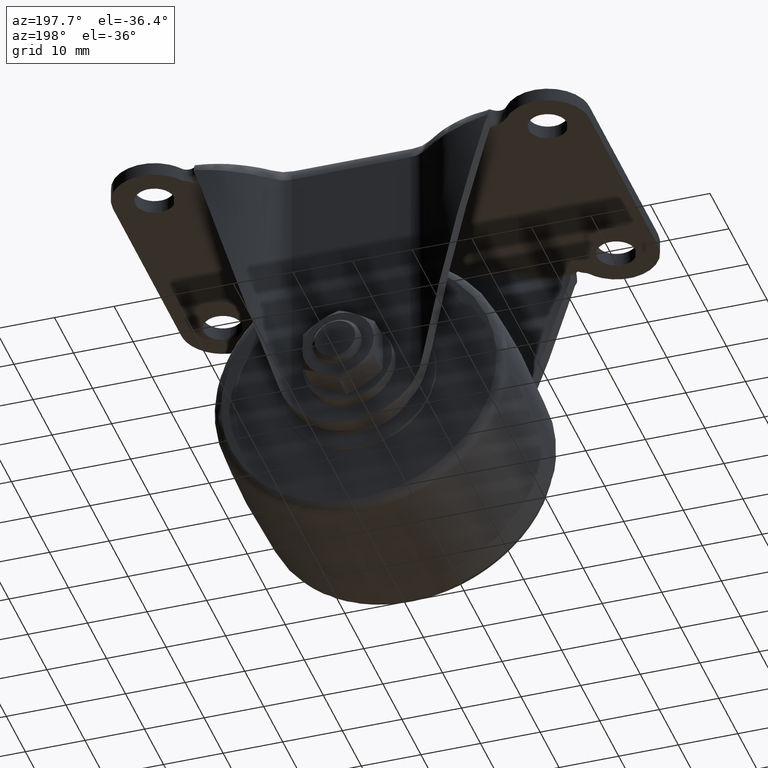
[diagram: clean part render]
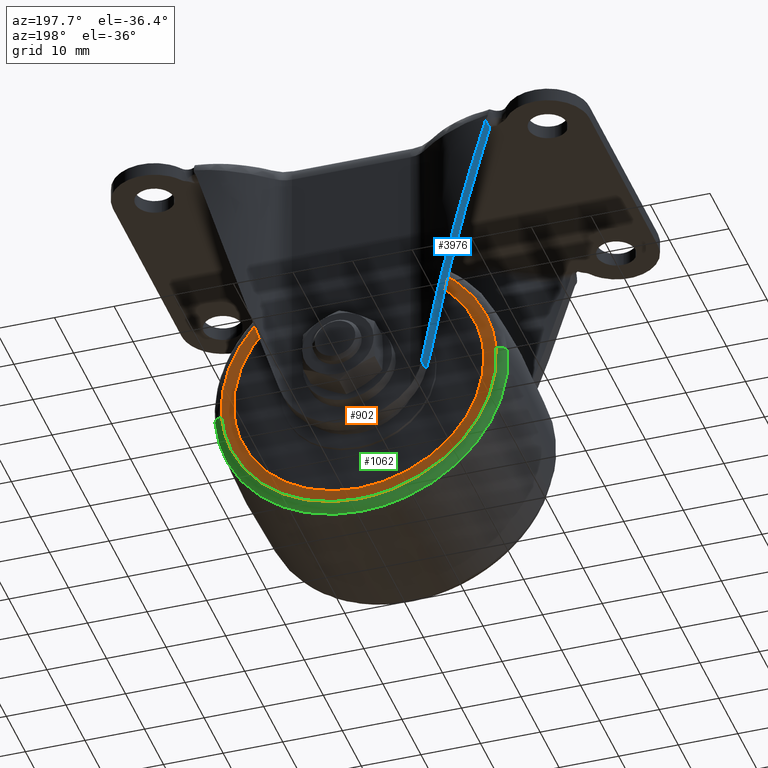
[diagram: same view with three faces highlighted in distinct colors, each labeled with its STEP entity id]
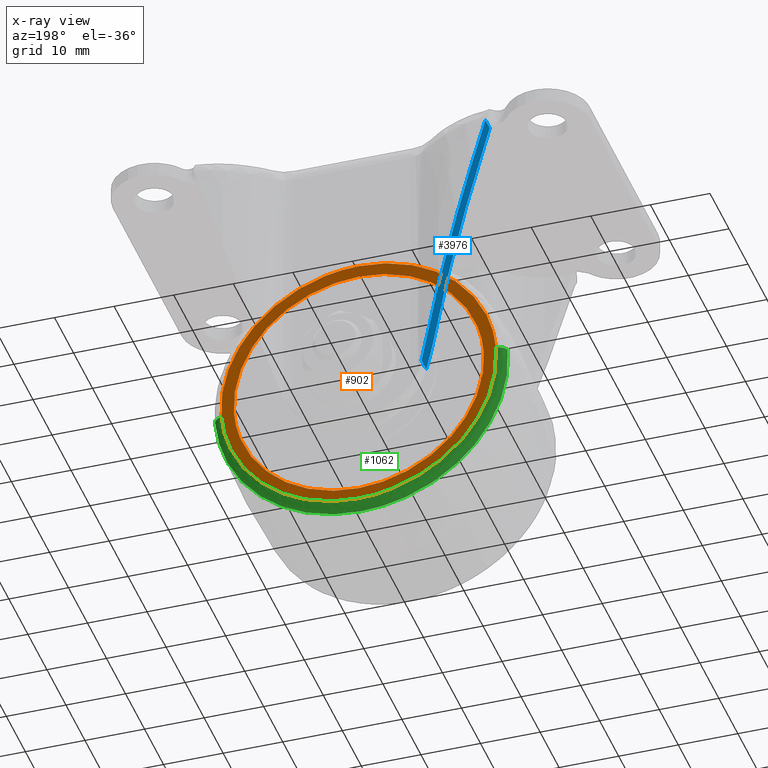
[diagram: x-ray of the same camera — body ghosted, the three highlighted faces saturated]
A machine part, auxiliary view with three faces highlighted in distinct colors.
The next image is the same camera in x-ray (body ghosted, the three faces saturated) — at least one of them is partly hidden behind the body in this view.
Their STEP definitions:

[orange] entity #902 — the highlighted face is a freeform B-spline surface patch.
#723=CARTESIAN_POINT('',(-20.960831436741959,14.000000000000121,-41.717991622348222));
#724=VERTEX_POINT('',#723);
#730=CARTESIAN_POINT('',(0.0,14.000000000000121,-22.0));
#731=VERTEX_POINT('',#730);
#732=CARTESIAN_POINT('',(0.0,14.000000000000121,-22.0));
#733=CARTESIAN_POINT('',(-19.754837746721773,14.000000000000126,-22.000000000000082));
#734=CARTESIAN_POINT('',(-20.960831436741959,14.000000000000117,-41.717991622348222));
#742=(BOUNDED_CURVE()B_SPLINE_CURVE(2,(#732,#733,#734),.UNSPECIFIED.,.F.,.U.)B_SPLINE_CURVE_WITH_KNOTS((3,3),(0.500000000000000,0.739333052402168),.UNSPECIFIED.)CURVE()GEOMETRIC_REPRESENTATION_ITEM()RATIONAL_B_SPLINE_CURVE((1.0,0.719603887653921,0.976072234903748))REPRESENTATION_ITEM(''));
#743=EDGE_CURVE('',#731,#724,#742,.T.);
#745=CARTESIAN_POINT('',(20.960831436741959,14.000000000000121,-44.282008377651792));
#746=VERTEX_POINT('',#745);
#747=CARTESIAN_POINT('',(20.960831436741962,14.000000000000119,-44.282008377651785));
#748=CARTESIAN_POINT('',(20.999999999997179,14.000000000000128,-43.641602537625332));
#749=CARTESIAN_POINT('',(20.999999999997218,14.000000000000121,-42.999999999999837));
#750=CARTESIAN_POINT('',(20.999999999998646,14.000000000000123,-21.999999999999922));
#751=CARTESIAN_POINT('',(0.0,14.000000000000121,-22.0));
#759=(BOUNDED_CURVE()B_SPLINE_CURVE(2,(#747,#748,#749,#750,#751),.UNSPECIFIED.,.F.,.U.)B_SPLINE_CURVE_WITH_KNOTS((3,2,3),(0.239333052402168,0.250000000000000,0.500000000000000),.UNSPECIFIED.)CURVE()GEOMETRIC_REPRESENTATION_ITEM()RATIONAL_B_SPLINE_CURVE((0.976072234903748,0.987502893532626,1.0,0.707106781186547,1.0))REPRESENTATION_ITEM(''));
#760=EDGE_CURVE('',#746,#731,#759,.T.);
#790=CARTESIAN_POINT('',(0.0,14.000000000000121,-64.0));
#791=VERTEX_POINT('',#790);
#792=CARTESIAN_POINT('',(0.0,14.000000000000121,-64.0));
#793=CARTESIAN_POINT('',(19.754837746721755,14.000000000000124,-63.999999999999908));
#794=CARTESIAN_POINT('',(20.960831436741962,14.000000000000119,-44.282008377651785));
#802=(BOUNDED_CURVE()B_SPLINE_CURVE(2,(#792,#793,#794),.UNSPECIFIED.,.F.,.U.)B_SPLINE_CURVE_WITH_KNOTS((3,3),(0.0,0.239333052402168),.UNSPECIFIED.)CURVE()GEOMETRIC_REPRESENTATION_ITEM()RATIONAL_B_SPLINE_CURVE((1.0,0.719603887653921,0.976072234903748))REPRESENTATION_ITEM(''));
#803=EDGE_CURVE('',#791,#746,#802,.T.);
#805=CARTESIAN_POINT('',(-20.960831436741959,14.000000000000117,-41.717991622348222));
#806=CARTESIAN_POINT('',(-20.999999999997176,14.000000000000126,-42.358397462374690));
#807=CARTESIAN_POINT('',(-20.999999999997229,14.000000000000121,-43.000000000000171));
#808=CARTESIAN_POINT('',(-20.999999999998661,14.000000000000123,-64.000000000000071));
#809=CARTESIAN_POINT('',(0.0,14.000000000000121,-64.0));
#817=(BOUNDED_CURVE()B_SPLINE_CURVE(2,(#805,#806,#807,#808,#809),.UNSPECIFIED.,.F.,.U.)B_SPLINE_CURVE_WITH_KNOTS((3,2,3),(0.739333052402168,0.750000000000000,1.0),.UNSPECIFIED.)CURVE()GEOMETRIC_REPRESENTATION_ITEM()RATIONAL_B_SPLINE_CURVE((0.976072234903748,0.987502893532626,1.0,0.707106781186547,1.0))REPRESENTATION_ITEM(''));
#818=EDGE_CURVE('',#724,#791,#817,.T.);
#825=CARTESIAN_POINT('',(-25.408972607249229,14.000000000000121,-68.414324743792108));
#826=CARTESIAN_POINT('',(-25.408972607249229,14.000000000000121,-17.585674016703731));
#827=CARTESIAN_POINT('',(25.408971367774679,14.000000000000121,-68.414324743792108));
#828=CARTESIAN_POINT('',(25.408971367774679,14.000000000000121,-17.585674016703731));
#829=B_SPLINE_SURFACE_WITH_KNOTS('',1,1,((#825,#827),(#826,#828)),.UNSPECIFIED.,.F.,.F.,.U.,(2,2),(2,2),(0.0,50.828650727088380),(0.0,50.817943975023908),.UNSPECIFIED.);
#830=CARTESIAN_POINT('',(-23.040385673882572,14.000000000000121,-41.259496404739181));
#831=VERTEX_POINT('',#830);
#832=CARTESIAN_POINT('',(0.0,14.000000000000121,-66.106032215074151));
#833=VERTEX_POINT('',#832);
#834=CARTESIAN_POINT('',(-23.040385673882568,14.000000000000117,-41.259496404739181));
#835=CARTESIAN_POINT('',(-23.106032215971453,14.000000000000119,-42.128510207625382));
#836=CARTESIAN_POINT('',(-23.106032215954230,14.000000000000121,-42.999999999933507));
#837=CARTESIAN_POINT('',(-23.106032215497599,14.000000000000123,-66.106032215042163));
#838=CARTESIAN_POINT('',(0.0,14.000000000000121,-66.106032215074151));
#846=(BOUNDED_CURVE()B_SPLINE_CURVE(2,(#834,#835,#836,#837,#838),.UNSPECIFIED.,.F.,.U.)B_SPLINE_CURVE_WITH_KNOTS((3,2,3),(0.736870159262311,0.750000000000000,1.0),.UNSPECIFIED.)CURVE()GEOMETRIC_REPRESENTATION_ITEM()RATIONAL_B_SPLINE_CURVE((0.970850634527142,0.984617434735322,1.0,0.707106781186548,1.0))REPRESENTATION_ITEM(''));
#847=EDGE_CURVE('',#831,#833,#846,.T.);
#848=ORIENTED_EDGE('',*,*,#847,.F.);
#849=CARTESIAN_POINT('',(0.0,14.000000000000121,-19.893967784925849));
#850=VERTEX_POINT('',#849);
#851=CARTESIAN_POINT('',(0.0,14.000000000000121,-19.893967784925849));
#852=CARTESIAN_POINT('',(-21.426403168796849,14.000000000000123,-19.893967784891345));
#853=CARTESIAN_POINT('',(-23.040385673882568,14.000000000000117,-41.259496404739181));
#861=(BOUNDED_CURVE()B_SPLINE_CURVE(2,(#851,#852,#853),.UNSPECIFIED.,.F.,.U.)B_SPLINE_CURVE_WITH_KNOTS((3,3),(0.500000000000000,0.736870159262311),.UNSPECIFIED.)CURVE()GEOMETRIC_REPRESENTATION_ITEM()RATIONAL_B_SPLINE_CURVE((1.0,0.722489346451226,0.970850634527142))REPRESENTATION_ITEM(''));
#862=EDGE_CURVE('',#850,#831,#861,.T.);
#863=ORIENTED_EDGE('',*,*,#862,.F.);
#864=CARTESIAN_POINT('',(23.040385673882579,14.000000000000121,-44.740503595260833));
#865=VERTEX_POINT('',#864);
#866=CARTESIAN_POINT('',(23.040385673882572,14.000000000000119,-44.740503595260833));
#867=CARTESIAN_POINT('',(23.106032215971457,14.000000000000121,-43.871489792374618));
#868=CARTESIAN_POINT('',(23.106032215954240,14.000000000000121,-43.000000000066493));
#869=CARTESIAN_POINT('',(23.106032215497599,14.000000000000123,-19.893967784957841));
#870=CARTESIAN_POINT('',(0.0,14.000000000000121,-19.893967784925849));
#878=(BOUNDED_CURVE()B_SPLINE_CURVE(2,(#866,#867,#868,#869,#870),.UNSPECIFIED.,.F.,.U.)B_SPLINE_CURVE_WITH_KNOTS((3,2,3),(0.236870159262311,0.250000000000000,0.500000000000000),.UNSPECIFIED.)CURVE()GEOMETRIC_REPRESENTATION_ITEM()RATIONAL_B_SPLINE_CURVE((0.970850634527142,0.984617434735321,1.0,0.707106781186548,1.0))REPRESENTATION_ITEM(''));
#879=EDGE_CURVE('',#865,#850,#878,.T.);
#880=ORIENTED_EDGE('',*,*,#879,.F.);
#881=CARTESIAN_POINT('',(0.0,14.000000000000121,-66.106032215074151));
#882=CARTESIAN_POINT('',(21.426403168796828,14.000000000000117,-66.106032215108655));
#883=CARTESIAN_POINT('',(23.040385673882575,14.000000000000121,-44.740503595260833));
#891=(BOUNDED_CURVE()B_SPLINE_CURVE(2,(#881,#882,#883),.UNSPECIFIED.,.F.,.U.)B_SPLINE_CURVE_WITH_KNOTS((3,3),(0.0,0.236870159262311),.UNSPECIFIED.)CURVE()GEOMETRIC_REPRESENTATION_ITEM()RATIONAL_B_SPLINE_CURVE((1.0,0.722489346451226,0.970850634527142))REPRESENTATION_ITEM(''));
#892=EDGE_CURVE('',#833,#865,#891,.T.);
#893=ORIENTED_EDGE('',*,*,#892,.F.);
#894=EDGE_LOOP('',(#848,#863,#880,#893));
#895=FACE_OUTER_BOUND('',#894,.T.);
#896=ORIENTED_EDGE('',*,*,#743,.T.);
#897=ORIENTED_EDGE('',*,*,#818,.T.);
#898=ORIENTED_EDGE('',*,*,#803,.T.);
#899=ORIENTED_EDGE('',*,*,#760,.T.);
#900=EDGE_LOOP('',(#896,#897,#898,#899));
#901=FACE_BOUND('',#900,.T.);
#902=ADVANCED_FACE('',(#895,#901),#829,.T.);

[blue] entity #3976 — the highlighted face is a freeform B-spline surface patch.
#3873=CARTESIAN_POINT('',(-24.902436185338189,15.673118453543459,-0.941362386125301));
#3874=CARTESIAN_POINT('',(-11.370753602469090,15.673118453543459,-46.624737570785783));
#3875=CARTESIAN_POINT('',(-24.902436185338189,23.868271055112100,-0.941362386125301));
#3876=CARTESIAN_POINT('',(-11.370753602469090,23.868271055112100,-46.624737570785783));
#3877=B_SPLINE_SURFACE_WITH_KNOTS('',1,1,((#3873,#3875),(#3874,#3876)),.UNSPECIFIED.,.F.,.F.,.U.,(2,2),(2,2),(0.0,47.645327176817418),(0.0,8.195152601568644),.UNSPECIFIED.);
#3878=CARTESIAN_POINT('',(-24.203793946450350,21.209448129626448,-3.300000000000000));
#3879=VERTEX_POINT('',#3878);
#3880=CARTESIAN_POINT('',(-23.483671002061151,21.156677177313401,-5.731157134092110));
#3881=VERTEX_POINT('',#3880);
#3882=CARTESIAN_POINT('',(-24.203793946450350,21.209448129626448,-3.300000000000000));
#3883=CARTESIAN_POINT('',(-23.483671002061151,21.156677177313401,-5.731157134092110));
#3884=QUASI_UNIFORM_CURVE('',1,(#3882,#3883),.UNSPECIFIED.,.F.,.U.);
#3885=EDGE_CURVE('',#3879,#3881,#3884,.T.);
#3886=ORIENTED_EDGE('',*,*,#3885,.F.);
#3887=CARTESIAN_POINT('',(-24.287918952238151,21.174324167167299,-3.015991401787390));
#3888=VERTEX_POINT('',#3887);
#3889=CARTESIAN_POINT('',(-24.203793946450279,21.209448129626431,-3.300000000000052));
#3890=CARTESIAN_POINT('',(-24.246740685482290,21.212595287115466,-3.155010492587220));
#3891=CARTESIAN_POINT('',(-24.287918952238151,21.174324167167288,-3.015991401787432));
#3899=(BOUNDED_CURVE()B_SPLINE_CURVE(2,(#3889,#3890,#3891),.UNSPECIFIED.,.F.,.U.)CURVE()GEOMETRIC_REPRESENTATION_ITEM()QUASI_UNIFORM_CURVE()RATIONAL_B_SPLINE_CURVE((1.0,0.989651891637690,1.0))REPRESENTATION_ITEM(''));
#3900=EDGE_CURVE('',#3879,#3888,#3899,.T.);
#3901=ORIENTED_EDGE('',*,*,#3900,.T.);
#3902=CARTESIAN_POINT('',(-24.287918952238151,23.496102614493850,-3.015991401787430));
#3903=VERTEX_POINT('',#3902);
#3904=CARTESIAN_POINT('',(-24.287918952238151,21.174324167167299,-3.015991401787390));
#3905=CARTESIAN_POINT('',(-24.287918952238151,23.496102614493850,-3.015991401787430));
#3906=QUASI_UNIFORM_CURVE('',1,(#3904,#3905),.UNSPECIFIED.,.F.,.U.);
#3907=EDGE_CURVE('',#3888,#3903,#3906,.T.);
#3908=ORIENTED_EDGE('',*,*,#3907,.T.);
#3909=CARTESIAN_POINT('',(-12.548575408855120,18.977777843264601,-42.648375048809051));
#3910=VERTEX_POINT('',#3909);
#3911=CARTESIAN_POINT('',(-12.548575408855120,18.977777843264590,-42.648375048809072));
#3912=CARTESIAN_POINT('',(-17.601557490519454,23.358833037606228,-25.589352652712140));
#3913=CARTESIAN_POINT('',(-24.287918952237622,23.496102614493850,-3.015991401789258));
#3921=(BOUNDED_CURVE()B_SPLINE_CURVE(2,(#3911,#3912,#3913),.UNSPECIFIED.,.F.,.U.)CURVE()GEOMETRIC_REPRESENTATION_ITEM()QUASI_UNIFORM_CURVE()RATIONAL_B_SPLINE_CURVE((1.0,0.940436680516027,1.0))REPRESENTATION_ITEM(''));
#3922=EDGE_CURVE('',#3910,#3903,#3921,.T.);
#3923=ORIENTED_EDGE('',*,*,#3922,.F.);
#3924=CARTESIAN_POINT('',(-11.985271165551881,18.569459145717850,-44.550107441091903));
#3925=VERTEX_POINT('',#3924);
#3926=CARTESIAN_POINT('',(-12.548575408855120,18.977777843264601,-42.648375048809051));
#3927=CARTESIAN_POINT('',(-12.284745703318624,18.749031223117584,-43.539072221837550));
#3928=CARTESIAN_POINT('',(-11.985271165552010,18.569459145717850,-44.550107441091427));
#3936=(BOUNDED_CURVE()B_SPLINE_CURVE(2,(#3926,#3927,#3928),.UNSPECIFIED.,.F.,.U.)CURVE()GEOMETRIC_REPRESENTATION_ITEM()QUASI_UNIFORM_CURVE()RATIONAL_B_SPLINE_CURVE((1.0,0.996211292933049,1.0))REPRESENTATION_ITEM(''));
#3937=EDGE_CURVE('',#3910,#3925,#3936,.T.);
#3938=ORIENTED_EDGE('',*,*,#3937,.T.);
#3939=CARTESIAN_POINT('',(-11.985271165551881,16.045286694315251,-44.550107441091903));
#3940=VERTEX_POINT('',#3939);
#3941=CARTESIAN_POINT('',(-11.985271165551881,18.569459145717850,-44.550107441091903));
#3942=CARTESIAN_POINT('',(-11.985271165551881,16.045286694315251,-44.550107441091903));
#3943=QUASI_UNIFORM_CURVE('',1,(#3941,#3942),.UNSPECIFIED.,.F.,.U.);
#3944=EDGE_CURVE('',#3925,#3940,#3943,.T.);
#3945=ORIENTED_EDGE('',*,*,#3944,.T.);
#3946=CARTESIAN_POINT('',(-14.055269859451760,17.239999999999998,-37.561728399087002));
#3947=VERTEX_POINT('',#3946);
#3948=CARTESIAN_POINT('',(-14.055269859451821,17.240000000000041,-37.561728399087023));
#3949=CARTESIAN_POINT('',(-13.135675139382593,16.442689579357168,-40.666308362257276));
#3950=CARTESIAN_POINT('',(-11.985271165551980,16.045286694315251,-44.550107441091818));
#3958=(BOUNDED_CURVE()B_SPLINE_CURVE(2,(#3948,#3949,#3950),.UNSPECIFIED.,.F.,.U.)CURVE()GEOMETRIC_REPRESENTATION_ITEM()QUASI_UNIFORM_CURVE()RATIONAL_B_SPLINE_CURVE((1.0,0.981845042307097,1.0))REPRESENTATION_ITEM(''));
#3959=EDGE_CURVE('',#3947,#3940,#3958,.T.);
#3960=ORIENTED_EDGE('',*,*,#3959,.F.);
#3961=CARTESIAN_POINT('',(-14.055269859451750,17.239999999999998,-37.561728399087137));
#3962=CARTESIAN_POINT('',(-18.119253446860235,20.763570104141500,-23.841595235239311));
#3963=CARTESIAN_POINT('',(-23.483671002061129,21.156677177313401,-5.731157134092179));
#3971=(BOUNDED_CURVE()B_SPLINE_CURVE(2,(#3961,#3962,#3963),.UNSPECIFIED.,.F.,.U.)CURVE()GEOMETRIC_REPRESENTATION_ITEM()QUASI_UNIFORM_CURVE()RATIONAL_B_SPLINE_CURVE((1.0,0.949055199944192,1.0))REPRESENTATION_ITEM(''));
#3972=EDGE_CURVE('',#3947,#3881,#3971,.T.);
#3973=ORIENTED_EDGE('',*,*,#3972,.T.);
#3974=EDGE_LOOP('',(#3886,#3901,#3908,#3923,#3938,#3945,#3960,#3973));
#3975=FACE_OUTER_BOUND('',#3974,.T.);
#3976=ADVANCED_FACE('',(#3975),#3877,.F.);

[green] entity #1062 — the highlighted face is a freeform B-spline surface patch.
#830=CARTESIAN_POINT('',(-23.040385673882572,14.000000000000121,-41.259496404739181));
#831=VERTEX_POINT('',#830);
#832=CARTESIAN_POINT('',(0.0,14.000000000000121,-66.106032215074151));
#833=VERTEX_POINT('',#832);
#834=CARTESIAN_POINT('',(-23.040385673882568,14.000000000000117,-41.259496404739181));
#835=CARTESIAN_POINT('',(-23.106032215971453,14.000000000000119,-42.128510207625382));
#836=CARTESIAN_POINT('',(-23.106032215954230,14.000000000000121,-42.999999999933507));
#837=CARTESIAN_POINT('',(-23.106032215497599,14.000000000000123,-66.106032215042163));
#838=CARTESIAN_POINT('',(0.0,14.000000000000121,-66.106032215074151));
#846=(BOUNDED_CURVE()B_SPLINE_CURVE(2,(#834,#835,#836,#837,#838),.UNSPECIFIED.,.F.,.U.)B_SPLINE_CURVE_WITH_KNOTS((3,2,3),(0.736870159262311,0.750000000000000,1.0),.UNSPECIFIED.)CURVE()GEOMETRIC_REPRESENTATION_ITEM()RATIONAL_B_SPLINE_CURVE((0.970850634527142,0.984617434735322,1.0,0.707106781186548,1.0))REPRESENTATION_ITEM(''));
#847=EDGE_CURVE('',#831,#833,#846,.T.);
#864=CARTESIAN_POINT('',(23.040385673882579,14.000000000000121,-44.740503595260833));
#865=VERTEX_POINT('',#864);
#881=CARTESIAN_POINT('',(0.0,14.000000000000121,-66.106032215074151));
#882=CARTESIAN_POINT('',(21.426403168796828,14.000000000000117,-66.106032215108655));
#883=CARTESIAN_POINT('',(23.040385673882575,14.000000000000121,-44.740503595260833));
#891=(BOUNDED_CURVE()B_SPLINE_CURVE(2,(#881,#882,#883),.UNSPECIFIED.,.F.,.U.)B_SPLINE_CURVE_WITH_KNOTS((3,3),(0.0,0.236870159262311),.UNSPECIFIED.)CURVE()GEOMETRIC_REPRESENTATION_ITEM()RATIONAL_B_SPLINE_CURVE((1.0,0.722489346451226,0.970850634527142))REPRESENTATION_ITEM(''));
#892=EDGE_CURVE('',#833,#865,#891,.T.);
#934=CARTESIAN_POINT('',(-24.533155318123370,12.594462457292559,-41.146730456724711));
#935=VERTEX_POINT('',#934);
#936=CARTESIAN_POINT('',(-23.040385673882575,14.000000000000124,-41.259496404739181));
#937=CARTESIAN_POINT('',(-24.444717490237451,14.000000004685978,-41.153411176387699));
#938=CARTESIAN_POINT('',(-24.533155318123374,12.594462457292559,-41.146730456724711));
#946=(BOUNDED_CURVE()B_SPLINE_CURVE(2,(#936,#937,#938),.UNSPECIFIED.,.F.,.U.)B_SPLINE_CURVE_WITH_KNOTS((3,3),(-1.726123028022198,-0.274072998962666),.UNSPECIFIED.)CURVE()GEOMETRIC_REPRESENTATION_ITEM()RATIONAL_B_SPLINE_CURVE((0.891658472872323,0.650023674207352,0.891593240206242))REPRESENTATION_ITEM(''));
#947=EDGE_CURVE('',#831,#935,#946,.T.);
#964=CARTESIAN_POINT('',(24.533155318122990,12.594462457298430,-44.853269543275253));
#965=VERTEX_POINT('',#964);
#981=CARTESIAN_POINT('',(23.040385673882575,14.000000000000121,-44.740503595260833));
#982=CARTESIAN_POINT('',(24.444717490231909,14.000000004685972,-44.846588823611889));
#983=CARTESIAN_POINT('',(24.533155318122983,12.594462457298430,-44.853269543275239));
#991=(BOUNDED_CURVE()B_SPLINE_CURVE(2,(#981,#982,#983),.UNSPECIFIED.,.F.,.U.)B_SPLINE_CURVE_WITH_KNOTS((3,3),(-1.726123028022197,-0.274072998966824),.UNSPECIFIED.)CURVE()GEOMETRIC_REPRESENTATION_ITEM()RATIONAL_B_SPLINE_CURVE((0.891658472872322,0.650023674208044,0.891593240204858))REPRESENTATION_ITEM(''));
#992=EDGE_CURVE('',#865,#965,#991,.T.);
#997=CARTESIAN_POINT('',(-22.891146273865537,13.996590359407373,-40.625794324418429));
#998=CARTESIAN_POINT('',(-22.915228174147376,13.996590359407381,-40.944584973151429));
#999=CARTESIAN_POINT('',(-24.672481724786827,13.996590359407378,-64.206702698094759));
#1000=CARTESIAN_POINT('',(-1.732889513346031,13.996590359407380,-65.939592211440797));
#1001=CARTESIAN_POINT('',(21.206702698094766,13.996590359407378,-67.672481724786820));
#1002=CARTESIAN_POINT('',(22.963956248733187,13.996590359407376,-44.410363999856962));
#1003=CARTESIAN_POINT('',(22.988038149014038,13.996590359407374,-44.091573351137086));
#1004=CARTESIAN_POINT('',(-24.491391661456184,14.105209262846904,-40.459821347963427));
#1005=CARTESIAN_POINT('',(-24.517157048855257,14.105209262846902,-40.800897611367638));
#1006=CARTESIAN_POINT('',(-26.397254464786332,14.105209262846902,-65.689194128302276));
#1007=CARTESIAN_POINT('',(-1.854030168242030,14.105209262846902,-67.543224296544324));
#1008=CARTESIAN_POINT('',(22.689194128302280,14.105209262846902,-69.397254464786329));
#1009=CARTESIAN_POINT('',(24.569291544232271,14.105209262846900,-44.508957947866101));
#1010=CARTESIAN_POINT('',(24.595056931630268,14.105209262846902,-44.167881684475944));
#1011=CARTESIAN_POINT('',(-24.484291759336912,12.493359990194845,-40.460557729956065));
#1012=CARTESIAN_POINT('',(-24.510049677510413,12.493359990194842,-40.801535117472845));
#1013=CARTESIAN_POINT('',(-26.389602064893818,12.493359990194845,-65.682616672039146));
#1014=CARTESIAN_POINT('',(-1.853492696427334,12.493359990194847,-67.536109368466484));
#1015=CARTESIAN_POINT('',(22.682616672039146,12.493359990194845,-69.389602064893822));
#1016=CARTESIAN_POINT('',(24.562169059421461,12.493359990194849,-44.508520510341917));
#1017=CARTESIAN_POINT('',(24.587926977593916,12.493359990194849,-44.167543122839206));
#1025=(BOUNDED_SURFACE()B_SPLINE_SURFACE(2,2,((#997,#1004,#1011),(#998,#1005,#1012),(#999,#1006,#1013),(#1000,#1007,#1014),(#1001,#1008,#1015),(#1002,#1009,#1016),(#1003,#1010,#1017)),.UNSPECIFIED.,.F.,.F.,.U.)B_SPLINE_SURFACE_WITH_KNOTS((3,1,2,1,3),(3,3),(0.0,0.815371693798149,41.583956382285251,82.352541070772361,83.167912764536283),(0.0,2.613077074966226),.UNSPECIFIED.)GEOMETRIC_REPRESENTATION_ITEM()RATIONAL_B_SPLINE_SURFACE(((0.927746727696777,0.632000637097562,0.927674155065772),(0.922375046351798,0.628341334476533,0.922302893918500),(0.648419297767204,0.441716900810418,0.648368575416989),(0.917003365006818,0.624682031855504,0.916931632771228),(0.648419297767204,0.441716900810418,0.648368575416989),(0.922375046351572,0.628341334476379,0.922302893918275),(0.927746727696326,0.632000637097255,0.927674155065321)))REPRESENTATION_ITEM('')SURFACE());
#1026=ORIENTED_EDGE('',*,*,#892,.T.);
#1027=ORIENTED_EDGE('',*,*,#992,.T.);
#1028=CARTESIAN_POINT('',(0.0,12.594462468056269,-67.603054874269191));
#1029=VERTEX_POINT('',#1028);
#1030=CARTESIAN_POINT('',(0.0,12.594462468056269,-67.603054874269191));
#1031=CARTESIAN_POINT('',(22.814604126275555,12.594462462695356,-67.603054867647984));
#1032=CARTESIAN_POINT('',(24.533155318122986,12.594462457298427,-44.853269543275246));
#1040=(BOUNDED_CURVE()B_SPLINE_CURVE(2,(#1030,#1031,#1032),.UNSPECIFIED.,.F.,.U.)B_SPLINE_CURVE_WITH_KNOTS((3,3),(0.0,0.236870159076173),.UNSPECIFIED.)CURVE()GEOMETRIC_REPRESENTATION_ITEM()RATIONAL_B_SPLINE_CURVE((1.0,0.722489346669300,0.970850634136806))REPRESENTATION_ITEM(''));
#1041=EDGE_CURVE('',#1029,#965,#1040,.T.);
#1042=ORIENTED_EDGE('',*,*,#1041,.F.);
#1043=CARTESIAN_POINT('',(-24.533155318123370,12.594462457292561,-41.146730456724711));
#1044=CARTESIAN_POINT('',(-24.603055056998819,12.594462457481519,-42.072047031225388));
#1045=CARTESIAN_POINT('',(-24.603055060304719,12.594462457685189,-43.000000012758427));
#1046=CARTESIAN_POINT('',(-24.603055147954905,12.594462463085053,-67.603054880409090));
#1047=CARTESIAN_POINT('',(0.0,12.594462468056269,-67.603054874269191));
#1055=(BOUNDED_CURVE()B_SPLINE_CURVE(2,(#1043,#1044,#1045,#1046,#1047),.UNSPECIFIED.,.F.,.U.)B_SPLINE_CURVE_WITH_KNOTS((3,2,3),(0.736870159076211,0.750000000000000,1.0),.UNSPECIFIED.)CURVE()GEOMETRIC_REPRESENTATION_ITEM()RATIONAL_B_SPLINE_CURVE((0.970850634136884,0.984617434517291,1.0,0.707106781186548,1.0))REPRESENTATION_ITEM(''));
#1056=EDGE_CURVE('',#935,#1029,#1055,.T.);
#1057=ORIENTED_EDGE('',*,*,#1056,.F.);
#1058=ORIENTED_EDGE('',*,*,#947,.F.);
#1059=ORIENTED_EDGE('',*,*,#847,.T.);
#1060=EDGE_LOOP('',(#1026,#1027,#1042,#1057,#1058,#1059));
#1061=FACE_OUTER_BOUND('',#1060,.T.);
#1062=ADVANCED_FACE('',(#1061),#1025,.T.);